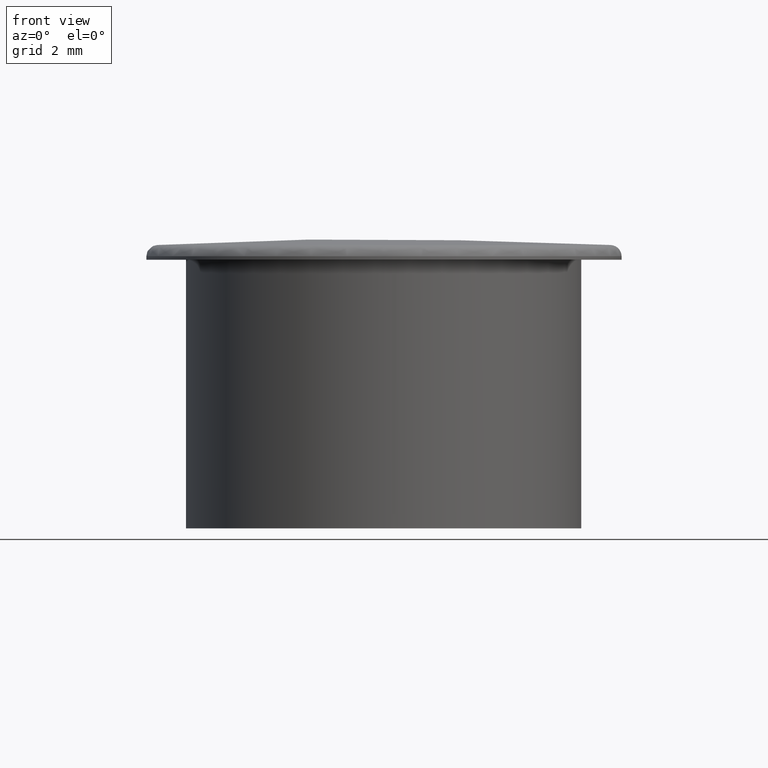
[diagram: clean part render]
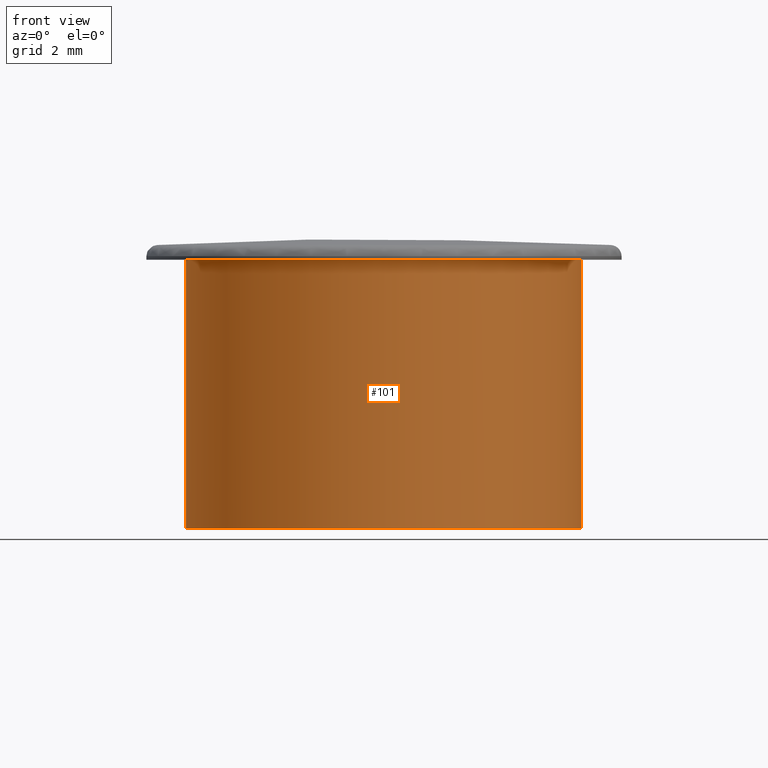
[diagram: same view with one face highlighted and labeled with its STEP entity id]
A machine part, front view. The second image highlights one B-rep face of the part: STEP entity #101.
In plain terms, the highlighted cylindrical surface (bore or boss wall) has radius 7 mm, axis along (0, 0, -1).
Its self-contained STEP definition (entity closure, byte-faithful):
#19=FACE_BOUND('',#39,.T.);
#23=CYLINDRICAL_SURFACE('',#114,7.);
#28=FACE_OUTER_BOUND('',#38,.T.);
#38=EDGE_LOOP('',(#80));
#39=EDGE_LOOP('',(#81));
#48=CIRCLE('',#113,7.);
#49=CIRCLE('',#115,7.);
#58=VERTEX_POINT('',#169);
#59=VERTEX_POINT('',#172);
#67=EDGE_CURVE('',#58,#58,#48,.T.);
#68=EDGE_CURVE('',#59,#59,#49,.T.);
#80=ORIENTED_EDGE('',*,*,#68,.T.);
#81=ORIENTED_EDGE('',*,*,#67,.F.);
#101=ADVANCED_FACE('',(#28,#19),#23,.T.);
#113=AXIS2_PLACEMENT_3D('',#170,#137,#138);
#114=AXIS2_PLACEMENT_3D('',#171,#139,#140);
#115=AXIS2_PLACEMENT_3D('',#173,#141,#142);
#137=DIRECTION('center_axis',(0.,0.,-1.));
#138=DIRECTION('ref_axis',(1.,0.,0.));
#139=DIRECTION('center_axis',(0.,0.,-1.));
#140=DIRECTION('ref_axis',(1.,0.,0.));
#141=DIRECTION('center_axis',(0.,0.,-1.));
#142=DIRECTION('ref_axis',(1.,0.,0.));
#169=CARTESIAN_POINT('',(-7.,9.5,-9.5));
#170=CARTESIAN_POINT('Origin',(0.,9.5,-9.5));
#171=CARTESIAN_POINT('Origin',(0.,9.5,-9.5));
#172=CARTESIAN_POINT('',(-7.,9.5,0.));
#173=CARTESIAN_POINT('Origin',(0.,9.5,0.));